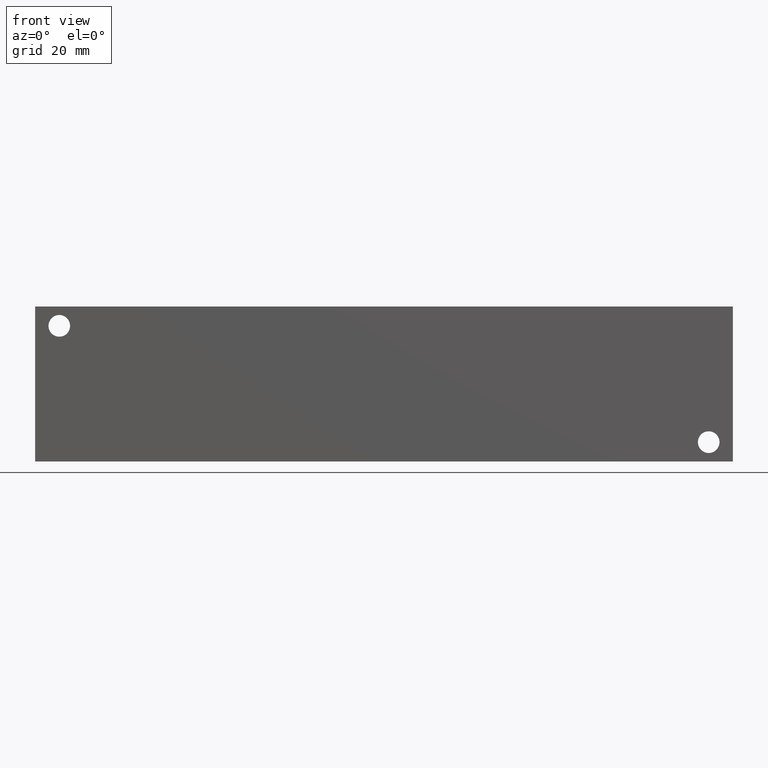
[diagram: clean part render]
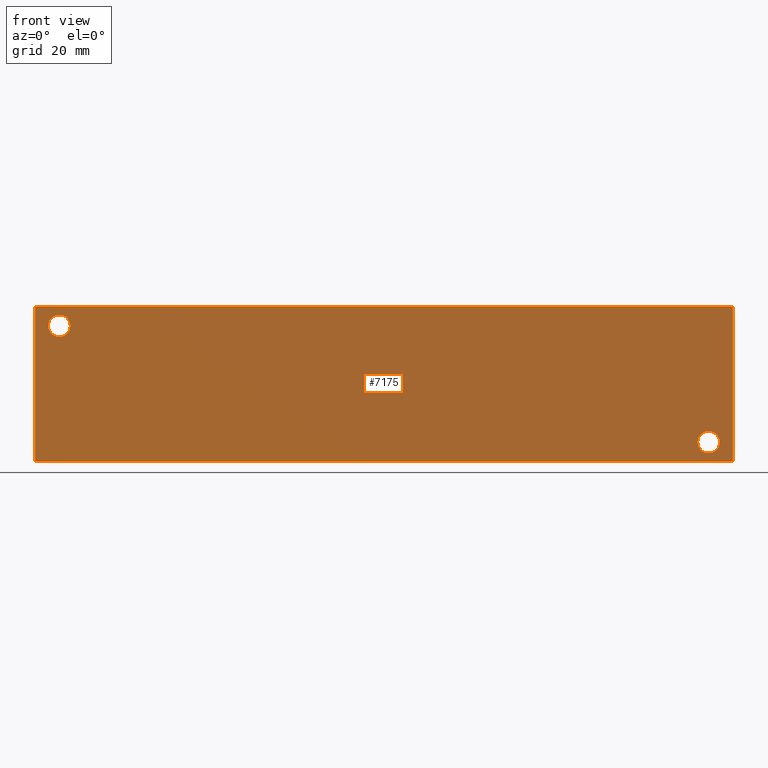
[diagram: same view with one face highlighted and labeled with its STEP entity id]
A machine part, front view. The second image highlights one B-rep face of the part: STEP entity #7175.
In plain terms, the highlighted planar face has unit normal (0, -1, 0).
Its self-contained STEP definition (entity closure, byte-faithful):
#100=CIRCLE('',#7468,3.5687);
#101=CIRCLE('',#7469,3.5687);
#103=CIRCLE('',#7477,3.5687);
#104=CIRCLE('',#7478,3.5687);
#192=FACE_BOUND('',#1211,.T.);
#193=FACE_BOUND('',#1212,.T.);
#432=PLANE('',#7552);
#796=FACE_OUTER_BOUND('',#1210,.T.);
#1210=EDGE_LOOP('',(#6398,#6399,#6400,#6401));
#1211=EDGE_LOOP('',(#6402,#6403));
#1212=EDGE_LOOP('',(#6404,#6405));
#1502=LINE('',#10978,#2210);
#1922=LINE('',#12169,#2630);
#1927=LINE('',#12178,#2635);
#1928=LINE('',#12180,#2636);
#2210=VECTOR('',#7992,10.);
#2630=VECTOR('',#8974,10.);
#2635=VECTOR('',#8983,10.);
#2636=VECTOR('',#8986,10.);
#3117=VERTEX_POINT('',#10976);
#3118=VERTEX_POINT('',#10977);
#3427=VERTEX_POINT('',#12006);
#3428=VERTEX_POINT('',#12007);
#3432=VERTEX_POINT('',#12022);
#3433=VERTEX_POINT('',#12023);
#3480=VERTEX_POINT('',#12167);
#3482=VERTEX_POINT('',#12176);
#3930=EDGE_CURVE('',#3117,#3118,#1502,.T.);
#4379=EDGE_CURVE('',#3427,#3428,#100,.T.);
#4380=EDGE_CURVE('',#3428,#3427,#101,.T.);
#4388=EDGE_CURVE('',#3432,#3433,#103,.T.);
#4389=EDGE_CURVE('',#3433,#3432,#104,.T.);
#4456=EDGE_CURVE('',#3480,#3117,#1922,.T.);
#4461=EDGE_CURVE('',#3482,#3118,#1927,.T.);
#4462=EDGE_CURVE('',#3480,#3482,#1928,.T.);
#6398=ORIENTED_EDGE('',*,*,#4462,.T.);
#6399=ORIENTED_EDGE('',*,*,#4461,.T.);
#6400=ORIENTED_EDGE('',*,*,#3930,.F.);
#6401=ORIENTED_EDGE('',*,*,#4456,.F.);
#6402=ORIENTED_EDGE('',*,*,#4379,.T.);
#6403=ORIENTED_EDGE('',*,*,#4380,.T.);
#6404=ORIENTED_EDGE('',*,*,#4388,.T.);
#6405=ORIENTED_EDGE('',*,*,#4389,.T.);
#7175=ADVANCED_FACE('',(#796,#192,#193),#432,.T.);
#7468=AXIS2_PLACEMENT_3D('',#12008,#8783,#8784);
#7469=AXIS2_PLACEMENT_3D('',#12009,#8785,#8786);
#7477=AXIS2_PLACEMENT_3D('',#12024,#8803,#8804);
#7478=AXIS2_PLACEMENT_3D('',#12025,#8805,#8806);
#7552=AXIS2_PLACEMENT_3D('',#12179,#8984,#8985);
#7992=DIRECTION('',(1.,0.,0.));
#8783=DIRECTION('center_axis',(0.,1.,0.));
#8784=DIRECTION('ref_axis',(1.,0.,0.));
#8785=DIRECTION('center_axis',(0.,1.,0.));
#8786=DIRECTION('ref_axis',(1.,0.,0.));
#8803=DIRECTION('center_axis',(0.,1.,0.));
#8804=DIRECTION('ref_axis',(1.,0.,0.));
#8805=DIRECTION('center_axis',(0.,1.,0.));
#8806=DIRECTION('ref_axis',(1.,0.,0.));
#8974=DIRECTION('',(0.,0.,1.));
#8983=DIRECTION('',(0.,0.,1.));
#8984=DIRECTION('center_axis',(0.,-1.,0.));
#8985=DIRECTION('ref_axis',(1.,0.,0.));
#8986=DIRECTION('',(1.,0.,0.));
#10976=CARTESIAN_POINT('',(0.,0.,50.8));
#10977=CARTESIAN_POINT('',(228.6,0.,50.8));
#10978=CARTESIAN_POINT('',(0.,0.,50.8));
#12006=CARTESIAN_POINT('',(11.4935,0.,44.45));
#12007=CARTESIAN_POINT('',(4.3561,3.5527136788005E-14,44.45));
#12008=CARTESIAN_POINT('Origin',(7.9248,0.,44.45));
#12009=CARTESIAN_POINT('Origin',(7.9248,0.,44.45));
#12022=CARTESIAN_POINT('',(224.2439,0.,6.35));
#12023=CARTESIAN_POINT('',(217.1065,3.5527136788005E-14,6.35));
#12024=CARTESIAN_POINT('Origin',(220.6752,0.,6.35));
#12025=CARTESIAN_POINT('Origin',(220.6752,0.,6.35));
#12167=CARTESIAN_POINT('',(0.,0.,0.));
#12169=CARTESIAN_POINT('',(0.,0.,0.));
#12176=CARTESIAN_POINT('',(228.6,0.,0.));
#12178=CARTESIAN_POINT('',(228.6,0.,0.));
#12179=CARTESIAN_POINT('Origin',(0.,0.,0.));
#12180=CARTESIAN_POINT('',(0.,0.,0.));